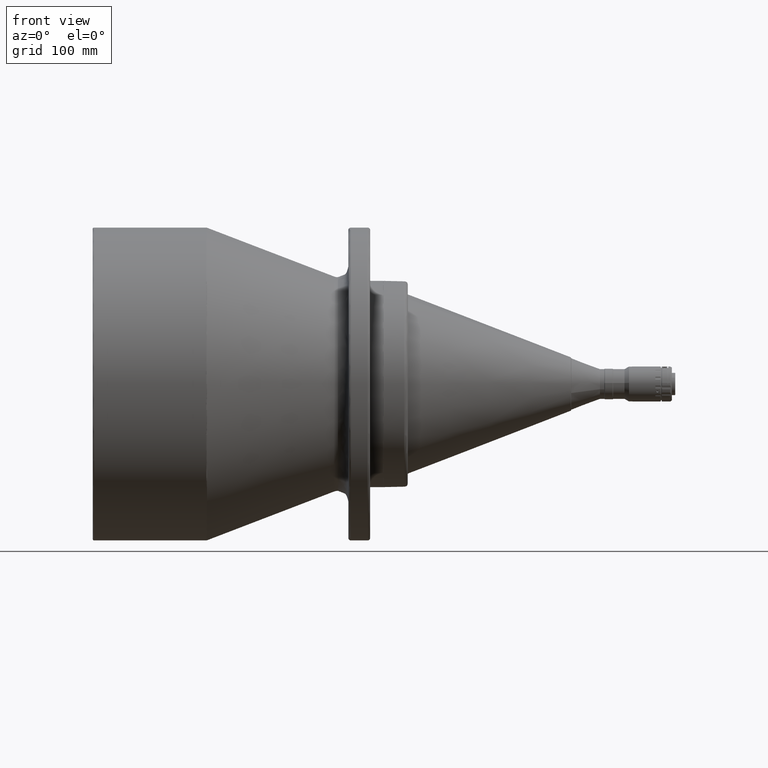
[diagram: clean part render]
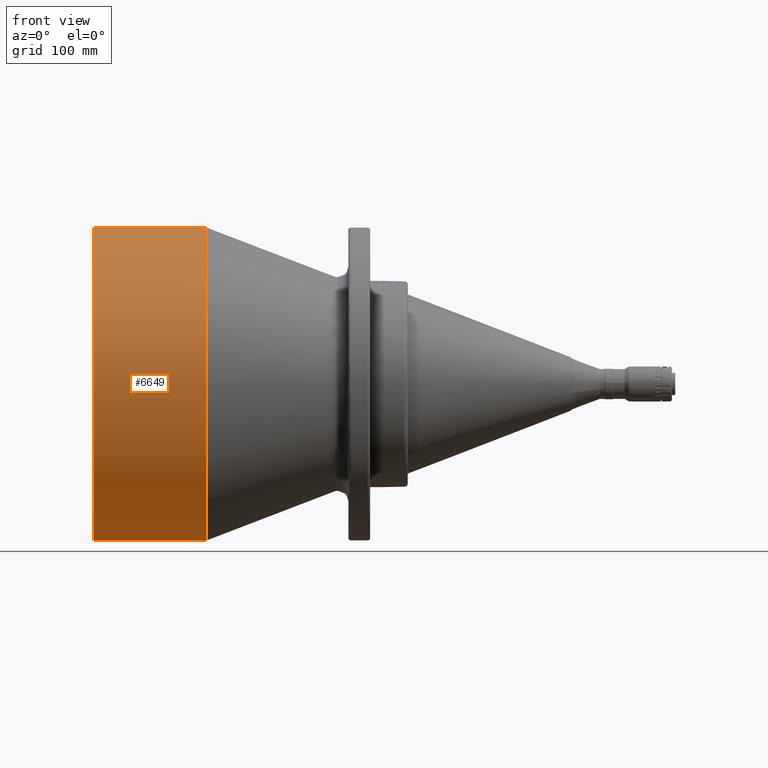
[diagram: same view with one face highlighted and labeled with its STEP entity id]
A machine part, front view. The second image highlights one B-rep face of the part: STEP entity #6649.
In plain terms, the highlighted cylindrical surface (partial cylindrical patch) has radius 179 mm, axis along (-1, 0, 0).
Its self-contained STEP definition (entity closure, byte-faithful):
#1002 = CARTESIAN_POINT ( 'NONE',  ( 1.499999999568174500, -8.036529744371605900E-009, 179.0000000000382000 ) ) ;
#1014 = DIRECTION ( 'NONE',  ( 1.000000000000000000, -0.0000000000000000000, -0.0000000000000000000 ) ) ;
#1855 = EDGE_CURVE ( 'NONE', #7999, #6194, #3751, .T. ) ;
#2458 = CIRCLE ( 'NONE', #8198, 178.9999999999999700 ) ;
#3362 = EDGE_CURVE ( 'NONE', #6611, #6194, #2458, .T. ) ;
#3716 = CIRCLE ( 'NONE', #7429, 179.0000000002463000 ) ;
#3751 = LINE ( 'NONE', #6120, #4107 ) ;
#4107 = VECTOR ( 'NONE', #9045, 1000.000000000000000 ) ;
#4597 = ORIENTED_EDGE ( 'NONE', *, *, #7718, .F. ) ;
#5101 = CARTESIAN_POINT ( 'NONE',  ( 130.0000000000000000, 0.0000000000000000000, 0.0000000000000000000 ) ) ;
#5129 = CARTESIAN_POINT ( 'NONE',  ( 129.9999999999353400, -1.607305948874321200E-008, 179.0000000000615600 ) ) ;
#5202 = ORIENTED_EDGE ( 'NONE', *, *, #7588, .F. ) ;
#5207 = DIRECTION ( 'NONE',  ( 0.0000000000000000000, 0.0000000000000000000, 1.000000000000000000 ) ) ;
#5504 = CARTESIAN_POINT ( 'NONE',  ( 129.9999999997413600, 0.0000000000000000000, 0.0000000000000000000 ) ) ;
#5576 = CARTESIAN_POINT ( 'NONE',  ( 130.0000000000000000, 2.192117770473762000E-014, -179.0000000000000000 ) ) ;
#5910 = CARTESIAN_POINT ( 'NONE',  ( 1.500000000000000000, 0.0000000000000000000, 0.0000000000000000000 ) ) ;
#6120 = CARTESIAN_POINT ( 'NONE',  ( 130.0000000000000000, 0.0000000000000000000, 179.0000000000000000 ) ) ;
#6194 = VERTEX_POINT ( 'NONE', #1002 ) ;
#6275 = DIRECTION ( 'NONE',  ( 0.0000000000000000000, 0.0000000000000000000, -1.000000000000000000 ) ) ;
#6336 = VERTEX_POINT ( 'NONE', #7965 ) ;
#6608 = DIRECTION ( 'NONE',  ( -1.000000000000000000, 0.0000000000000000000, 0.0000000000000000000 ) ) ;
#6611 = VERTEX_POINT ( 'NONE', #9658 ) ;
#6625 = FACE_OUTER_BOUND ( 'NONE', #8125, .T. ) ;
#6649 = ADVANCED_FACE ( 'NONE', ( #6625 ), #8030, .T. ) ;
#7231 = DIRECTION ( 'NONE',  ( -1.000000000000000000, 0.0000000000000000000, 0.0000000000000000000 ) ) ;
#7363 = DIRECTION ( 'NONE',  ( 0.0000000000000000000, 0.0000000000000000000, 1.000000000000000000 ) ) ;
#7429 = AXIS2_PLACEMENT_3D ( 'NONE', #5504, #1014, #6275 ) ;
#7588 = EDGE_CURVE ( 'NONE', #7999, #6336, #3716, .T. ) ;
#7718 = EDGE_CURVE ( 'NONE', #6336, #6611, #8612, .T. ) ;
#7965 = CARTESIAN_POINT ( 'NONE',  ( 129.9999999999030000, -4.589189213030534200E-008, -179.0000000000923700 ) ) ;
#7999 = VERTEX_POINT ( 'NONE', #5129 ) ;
#8030 = CYLINDRICAL_SURFACE ( 'NONE', #8539, 179.0000000000000000 ) ;
#8125 = EDGE_LOOP ( 'NONE', ( #4597, #5202, #8439, #9263 ) ) ;
#8198 = AXIS2_PLACEMENT_3D ( 'NONE', #5910, #9687, #5207 ) ;
#8439 = ORIENTED_EDGE ( 'NONE', *, *, #1855, .T. ) ;
#8493 = VECTOR ( 'NONE', #7231, 1000.000000000000000 ) ;
#8539 = AXIS2_PLACEMENT_3D ( 'NONE', #5101, #6608, #7363 ) ;
#8612 = LINE ( 'NONE', #5576, #8493 ) ;
#9045 = DIRECTION ( 'NONE',  ( -1.000000000000000000, 0.0000000000000000000, 0.0000000000000000000 ) ) ;
#9263 = ORIENTED_EDGE ( 'NONE', *, *, #3362, .F. ) ;
#9658 = CARTESIAN_POINT ( 'NONE',  ( 1.499999999481809400, -1.835675685212213800E-008, -179.0000000000458400 ) ) ;
#9687 = DIRECTION ( 'NONE',  ( -1.000000000000000000, 0.0000000000000000000, 0.0000000000000000000 ) ) ;